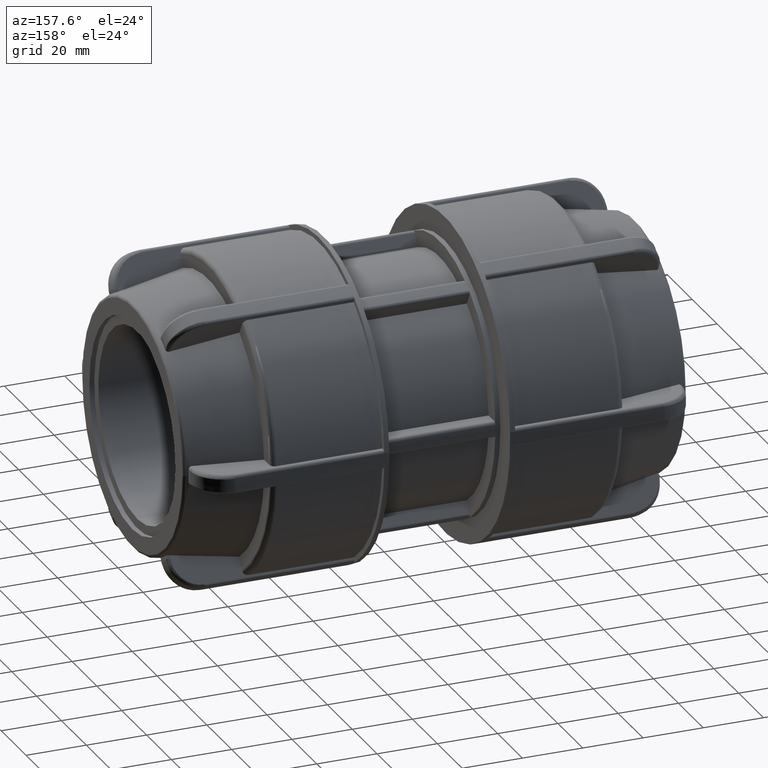
[diagram: clean part render]
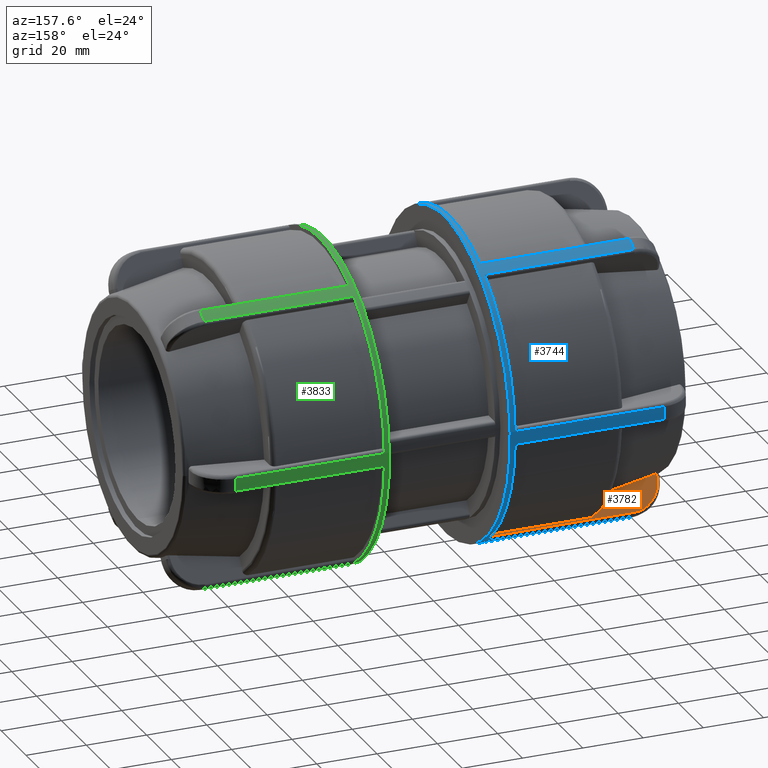
[diagram: same view with three faces highlighted in distinct colors, each labeled with its STEP entity id]
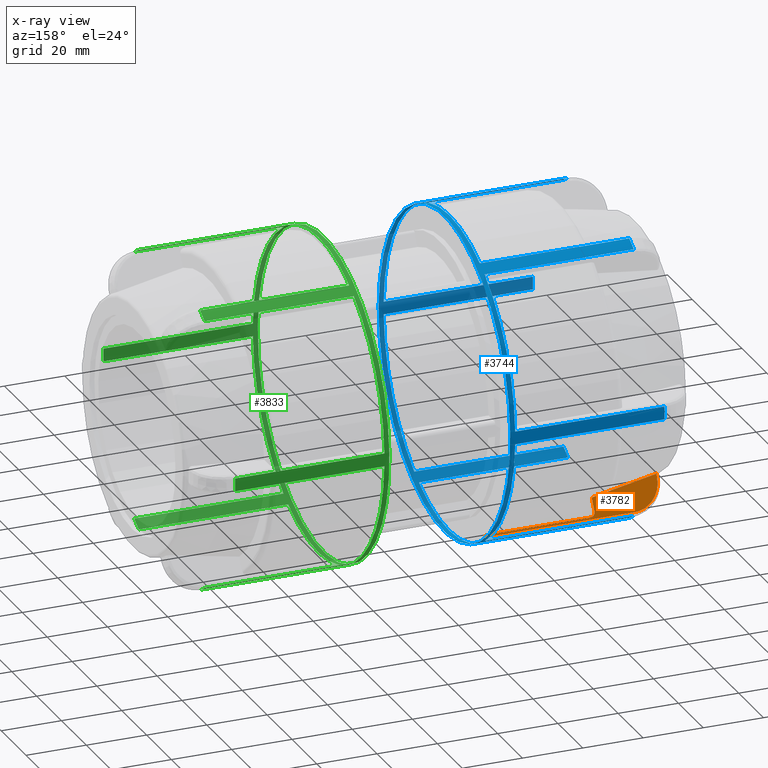
[diagram: x-ray of the same camera — body ghosted, the three highlighted faces saturated]
A machine part, auxiliary view with three faces highlighted in distinct colors.
The next image is the same camera in x-ray (body ghosted, the three faces saturated) — at least one of them is partly hidden behind the body in this view.
Their STEP definitions:

[orange] entity #3782 — the highlighted planar face has unit normal (0, -0.866, -0.5).
#49=(
BOUNDED_CURVE()
B_SPLINE_CURVE(2,(#6592,#6593,#6594),.UNSPECIFIED.,.F.,.F.)
B_SPLINE_CURVE_WITH_KNOTS((3,3),(0.,2.26158406310305),.UNSPECIFIED.)
CURVE()
GEOMETRIC_REPRESENTATION_ITEM()
RATIONAL_B_SPLINE_CURVE((1.,1.00108662893067,1.0001031353825))
REPRESENTATION_ITEM('')
);
#72=B_SPLINE_CURVE_WITH_KNOTS('',3,(#5853,#5854,#5855,#5856,#5857,#5858),
 .UNSPECIFIED.,.F.,.F.,(4,1,1,4),(0.,0.642536437779499,1.07089406296583,
1.49925168815216),.UNSPECIFIED.);
#103=B_SPLINE_CURVE_WITH_KNOTS('',3,(#6598,#6599,#6600,#6601,#6602,#6603,
#6604,#6605,#6606,#6607),.UNSPECIFIED.,.F.,.F.,(4,2,2,2,4),(0.,0.0617922903017213,
0.123644029369259,0.185570297774531,0.247562626783387),.UNSPECIFIED.);
#248=PLANE('',#4112);
#396=FACE_OUTER_BOUND('',#638,.T.);
#638=EDGE_LOOP('',(#2884,#2885,#2886,#2887,#2888,#2889,#2890,#2891));
#858=LINE('',#5810,#1086);
#860=LINE('',#5874,#1088);
#911=LINE('',#6596,#1139);
#912=LINE('',#6609,#1140);
#913=LINE('',#6610,#1141);
#1086=VECTOR('',#4646,49.52);
#1088=VECTOR('',#4654,1.03700516459949);
#1139=VECTOR('',#4865,4.38265552667059);
#1140=VECTOR('',#4866,35.07);
#1141=VECTOR('',#4867,0.584527829037813);
#1574=VERTEX_POINT('',#5807);
#1575=VERTEX_POINT('',#5809);
#1578=VERTEX_POINT('',#5851);
#1580=VERTEX_POINT('',#5861);
#1670=VERTEX_POINT('',#6591);
#1671=VERTEX_POINT('',#6595);
#1672=VERTEX_POINT('',#6597);
#1673=VERTEX_POINT('',#6608);
#1990=EDGE_CURVE('',#1574,#1575,#858,.T.);
#1995=EDGE_CURVE('',#1578,#1574,#72,.T.);
#1997=EDGE_CURVE('',#1580,#1578,#860,.T.);
#2129=EDGE_CURVE('',#1670,#1580,#49,.T.);
#2130=EDGE_CURVE('',#1671,#1670,#911,.T.);
#2131=EDGE_CURVE('',#1672,#1671,#103,.T.);
#2132=EDGE_CURVE('',#1673,#1672,#912,.T.);
#2133=EDGE_CURVE('',#1575,#1673,#913,.T.);
#2884=ORIENTED_EDGE('',*,*,#1997,.F.);
#2885=ORIENTED_EDGE('',*,*,#2129,.F.);
#2886=ORIENTED_EDGE('',*,*,#2130,.F.);
#2887=ORIENTED_EDGE('',*,*,#2131,.F.);
#2888=ORIENTED_EDGE('',*,*,#2132,.F.);
#2889=ORIENTED_EDGE('',*,*,#2133,.F.);
#2890=ORIENTED_EDGE('',*,*,#1990,.F.);
#2891=ORIENTED_EDGE('',*,*,#1995,.F.);
#3782=ADVANCED_FACE('',(#396),#248,.F.);
#4112=AXIS2_PLACEMENT_3D('',#6590,#4863,#4864);
#4646=DIRECTION('',(1.,1.8991348257094E-16,-7.35064880699656E-17));
#4654=DIRECTION('',(-2.32424453838558E-16,0.499999999999999,-0.866025403784439));
#4863=DIRECTION('center_axis',(1.27716656392624E-16,-0.866025403784439,
-0.499999999999999));
#4864=DIRECTION('ref_axis',(3.5527136788005E-16,-0.499999999999999,0.866025403784439));
#4865=DIRECTION('',(1.53080849893419E-16,-0.499999999999999,0.866025403784439));
#4866=DIRECTION('',(-1.,-3.06161699786838E-16,0.));
#4867=DIRECTION('',(1.53080849893419E-16,-0.499999999999999,0.866025403784439));
#5807=CARTESIAN_POINT('',(-71.23,28.676946764356,-43.3699288018126));
#5809=CARTESIAN_POINT('',(-21.71,28.676946764356,-43.3699288018126));
#5810=CARTESIAN_POINT('',(-20.875,28.676946764356,-43.3699288018126));
#5851=CARTESIAN_POINT('',(-80.77,23.9022090515692,-35.0998404904507));
#5853=CARTESIAN_POINT('Ctrl Pts',(-80.77,23.9022090515692,-35.0998404904507));
#5854=CARTESIAN_POINT('Ctrl Pts',(-80.77,24.973103114535,-36.9546834170314));
#5855=CARTESIAN_POINT('Ctrl Pts',(-79.5210555687004,26.7517363296068,-40.0353665135652));
#5856=CARTESIAN_POINT('Ctrl Pts',(-75.5087156799186,28.3499451026977,-42.8035453096611));
#5857=CARTESIAN_POINT('Ctrl Pts',(-72.657858750621,28.676946764356,-43.3699288018126));
#5858=CARTESIAN_POINT('Ctrl Pts',(-71.23,28.676946764356,-43.3699288018126));
#5861=CARTESIAN_POINT('',(-80.77,23.3837064692695,-34.2017676740519));
#5874=CARTESIAN_POINT('',(-80.77,25.4274662428712,-37.7416634403955));
#6590=CARTESIAN_POINT('Origin',(-20.04,29.1811343706938,-44.2432073525362));
#6591=CARTESIAN_POINT('',(-58.45,25.3567303205096,-37.619145228945));
#6592=CARTESIAN_POINT('Ctrl Pts',(-58.45,25.3567303205096,-37.619145228945));
#6593=CARTESIAN_POINT('Ctrl Pts',(-70.1187027137413,24.3254879251973,-35.832981005345));
#6594=CARTESIAN_POINT('Ctrl Pts',(-80.7700000000002,23.3837064692694,-34.2017676740518));
#6595=CARTESIAN_POINT('',(-58.45,27.5480580838449,-41.414636251078));
#6596=CARTESIAN_POINT('',(-58.45,21.6254310546507,-31.156345322233));
#6597=CARTESIAN_POINT('',(-56.78,28.3846828498371,-42.8637128526469));
#6598=CARTESIAN_POINT('Ctrl Pts',(-56.78,28.3846828498371,-42.8637128526469));
#6599=CARTESIAN_POINT('Ctrl Pts',(-56.9859743010058,28.3846828498371,-42.8637128526469));
#6600=CARTESIAN_POINT('Ctrl Pts',(-57.2283814630195,28.3605407597445,-42.8218975260057));
#6601=CARTESIAN_POINT('Ctrl Pts',(-57.6090944466039,28.2816063254478,-42.6851790753371));
#6602=CARTESIAN_POINT('Ctrl Pts',(-57.8147156802085,28.2128129567597,-42.5660254655455));
#6603=CARTESIAN_POINT('Ctrl Pts',(-58.1062949093139,28.0668550583607,-42.3132189697523));
#6604=CARTESIAN_POINT('Ctrl Pts',(-58.2437741301792,27.9638292517296,-42.1347730381766));
#6605=CARTESIAN_POINT('Ctrl Pts',(-58.4016935444585,27.772987912316,-41.8042261421277));
#6606=CARTESIAN_POINT('Ctrl Pts',(-58.45,27.651378632193,-41.5935926902828));
#6607=CARTESIAN_POINT('Ctrl Pts',(-58.45,27.5480580838449,-41.414636251078));
#6608=CARTESIAN_POINT('',(-21.71,28.3846828498371,-42.8637128526469));
#6609=CARTESIAN_POINT('',(-40.08,28.3846828498371,-42.8637128526469));
#6610=CARTESIAN_POINT('',(-21.71,22.3808071963073,-32.4646951784076));

[blue] entity #3744 — the highlighted cylindrical surface (bore or boss wall) has radius 53 mm, axis along (1, 0, 0).
#198=FACE_BOUND('',#600,.T.);
#358=FACE_OUTER_BOUND('',#599,.T.);
#599=EDGE_LOOP('',(#2691,#2692,#2693,#2694,#2695,#2696,#2697,#2698,#2699,
#2700,#2701,#2702,#2703,#2704,#2705,#2706,#2707,#2708,#2709,#2710,#2711,
#2712,#2713,#2714));
#600=EDGE_LOOP('',(#2715));
#851=LINE('',#5718,#1079);
#859=LINE('',#5813,#1087);
#862=LINE('',#5885,#1090);
#863=LINE('',#5889,#1091);
#864=LINE('',#5893,#1092);
#865=LINE('',#5897,#1093);
#866=LINE('',#5901,#1094);
#867=LINE('',#5905,#1095);
#868=LINE('',#5909,#1096);
#869=LINE('',#5913,#1097);
#870=LINE('',#5917,#1098);
#871=LINE('',#5921,#1099);
#1079=VECTOR('',#4627,49.52);
#1087=VECTOR('',#4649,49.52);
#1090=VECTOR('',#4670,49.52);
#1091=VECTOR('',#4673,49.52);
#1092=VECTOR('',#4676,49.52);
#1093=VECTOR('',#4679,49.52);
#1094=VECTOR('',#4682,49.52);
#1095=VECTOR('',#4685,49.52);
#1096=VECTOR('',#4688,49.52);
#1097=VECTOR('',#4691,49.52);
#1098=VECTOR('',#4694,49.52);
#1099=VECTOR('',#4697,49.52);
#1310=CIRCLE('',#4037,53.);
#1311=CIRCLE('',#4039,53.);
#1312=CIRCLE('',#4040,53.);
#1313=CIRCLE('',#4041,53.);
#1314=CIRCLE('',#4042,53.);
#1315=CIRCLE('',#4043,53.);
#1316=CIRCLE('',#4044,53.);
#1317=CIRCLE('',#4045,53.);
#1318=CIRCLE('',#4046,53.);
#1319=CIRCLE('',#4047,53.);
#1320=CIRCLE('',#4048,53.);
#1321=CIRCLE('',#4049,53.);
#1322=CIRCLE('',#4050,53.);
#1562=VERTEX_POINT('',#5715);
#1563=VERTEX_POINT('',#5717);
#1573=VERTEX_POINT('',#5806);
#1576=VERTEX_POINT('',#5811);
#1581=VERTEX_POINT('',#5882);
#1582=VERTEX_POINT('',#5884);
#1583=VERTEX_POINT('',#5886);
#1584=VERTEX_POINT('',#5888);
#1585=VERTEX_POINT('',#5890);
#1586=VERTEX_POINT('',#5892);
#1587=VERTEX_POINT('',#5894);
#1588=VERTEX_POINT('',#5896);
#1589=VERTEX_POINT('',#5898);
#1590=VERTEX_POINT('',#5900);
#1591=VERTEX_POINT('',#5902);
#1592=VERTEX_POINT('',#5904);
#1593=VERTEX_POINT('',#5906);
#1594=VERTEX_POINT('',#5908);
#1595=VERTEX_POINT('',#5910);
#1596=VERTEX_POINT('',#5912);
#1597=VERTEX_POINT('',#5914);
#1598=VERTEX_POINT('',#5916);
#1599=VERTEX_POINT('',#5918);
#1600=VERTEX_POINT('',#5920);
#1601=VERTEX_POINT('',#5923);
#1975=EDGE_CURVE('',#1562,#1563,#851,.T.);
#1992=EDGE_CURVE('',#1576,#1573,#859,.T.);
#2001=EDGE_CURVE('',#1573,#1562,#1310,.T.);
#2002=EDGE_CURVE('',#1581,#1576,#1311,.T.);
#2003=EDGE_CURVE('',#1582,#1581,#862,.T.);
#2004=EDGE_CURVE('',#1583,#1582,#1312,.T.);
#2005=EDGE_CURVE('',#1584,#1583,#863,.T.);
#2006=EDGE_CURVE('',#1585,#1584,#1313,.T.);
#2007=EDGE_CURVE('',#1586,#1585,#864,.T.);
#2008=EDGE_CURVE('',#1587,#1586,#1314,.T.);
#2009=EDGE_CURVE('',#1588,#1587,#865,.T.);
#2010=EDGE_CURVE('',#1589,#1588,#1315,.T.);
#2011=EDGE_CURVE('',#1590,#1589,#866,.T.);
#2012=EDGE_CURVE('',#1591,#1590,#1316,.T.);
#2013=EDGE_CURVE('',#1592,#1591,#867,.T.);
#2014=EDGE_CURVE('',#1593,#1592,#1317,.T.);
#2015=EDGE_CURVE('',#1594,#1593,#868,.T.);
#2016=EDGE_CURVE('',#1595,#1594,#1318,.T.);
#2017=EDGE_CURVE('',#1596,#1595,#869,.T.);
#2018=EDGE_CURVE('',#1597,#1596,#1319,.T.);
#2019=EDGE_CURVE('',#1598,#1597,#870,.T.);
#2020=EDGE_CURVE('',#1599,#1598,#1320,.T.);
#2021=EDGE_CURVE('',#1600,#1599,#871,.T.);
#2022=EDGE_CURVE('',#1563,#1600,#1321,.T.);
#2023=EDGE_CURVE('',#1601,#1601,#1322,.T.);
#2691=ORIENTED_EDGE('',*,*,#1975,.F.);
#2692=ORIENTED_EDGE('',*,*,#2001,.F.);
#2693=ORIENTED_EDGE('',*,*,#1992,.F.);
#2694=ORIENTED_EDGE('',*,*,#2002,.F.);
#2695=ORIENTED_EDGE('',*,*,#2003,.F.);
#2696=ORIENTED_EDGE('',*,*,#2004,.F.);
#2697=ORIENTED_EDGE('',*,*,#2005,.F.);
#2698=ORIENTED_EDGE('',*,*,#2006,.F.);
#2699=ORIENTED_EDGE('',*,*,#2007,.F.);
#2700=ORIENTED_EDGE('',*,*,#2008,.F.);
#2701=ORIENTED_EDGE('',*,*,#2009,.F.);
#2702=ORIENTED_EDGE('',*,*,#2010,.F.);
#2703=ORIENTED_EDGE('',*,*,#2011,.F.);
#2704=ORIENTED_EDGE('',*,*,#2012,.F.);
#2705=ORIENTED_EDGE('',*,*,#2013,.F.);
#2706=ORIENTED_EDGE('',*,*,#2014,.F.);
#2707=ORIENTED_EDGE('',*,*,#2015,.F.);
#2708=ORIENTED_EDGE('',*,*,#2016,.F.);
#2709=ORIENTED_EDGE('',*,*,#2017,.F.);
#2710=ORIENTED_EDGE('',*,*,#2018,.F.);
#2711=ORIENTED_EDGE('',*,*,#2019,.F.);
#2712=ORIENTED_EDGE('',*,*,#2020,.F.);
#2713=ORIENTED_EDGE('',*,*,#2021,.F.);
#2714=ORIENTED_EDGE('',*,*,#2022,.F.);
#2715=ORIENTED_EDGE('',*,*,#2023,.F.);
#3629=CYLINDRICAL_SURFACE('',#4038,53.);
#3744=ADVANCED_FACE('',(#358,#198),#3629,.T.);
#4037=AXIS2_PLACEMENT_3D('',#5880,#4664,#4665);
#4038=AXIS2_PLACEMENT_3D('',#5881,#4666,#4667);
#4039=AXIS2_PLACEMENT_3D('',#5883,#4668,#4669);
#4040=AXIS2_PLACEMENT_3D('',#5887,#4671,#4672);
#4041=AXIS2_PLACEMENT_3D('',#5891,#4674,#4675);
#4042=AXIS2_PLACEMENT_3D('',#5895,#4677,#4678);
#4043=AXIS2_PLACEMENT_3D('',#5899,#4680,#4681);
#4044=AXIS2_PLACEMENT_3D('',#5903,#4683,#4684);
#4045=AXIS2_PLACEMENT_3D('',#5907,#4686,#4687);
#4046=AXIS2_PLACEMENT_3D('',#5911,#4689,#4690);
#4047=AXIS2_PLACEMENT_3D('',#5915,#4692,#4693);
#4048=AXIS2_PLACEMENT_3D('',#5919,#4695,#4696);
#4049=AXIS2_PLACEMENT_3D('',#5922,#4698,#4699);
#4050=AXIS2_PLACEMENT_3D('',#5924,#4700,#4701);
#4627=DIRECTION('',(1.,3.06161699786838E-16,0.));
#4649=DIRECTION('',(-1.,-3.06161699786838E-16,0.));
#4664=DIRECTION('center_axis',(-1.,-2.268180958417E-16,1.37427153288602E-16));
#4665=DIRECTION('ref_axis',(-2.51371250858526E-16,0.499999999999999,-0.866025403784439));
#4666=DIRECTION('center_axis',(1.,3.06161699786838E-16,0.));
#4667=DIRECTION('ref_axis',(-1.47474491896561E-16,1.,0.));
#4668=DIRECTION('center_axis',(-1.,-3.06161699786838E-16,0.));
#4669=DIRECTION('ref_axis',(-1.47474491896561E-16,1.,0.));
#4670=DIRECTION('',(1.,3.06161699786838E-16,0.));
#4671=DIRECTION('center_axis',(-1.,-3.06161699786838E-16,0.));
#4672=DIRECTION('ref_axis',(-2.93266459334947E-16,1.,-1.60812264967664E-16));
#4673=DIRECTION('',(-1.,-3.06161699786838E-16,0.));
#4674=DIRECTION('center_axis',(-1.,-3.06161699786838E-16,0.));
#4675=DIRECTION('ref_axis',(-1.47474491896561E-16,1.,0.));
#4676=DIRECTION('',(1.,3.06161699786838E-16,0.));
#4677=DIRECTION('center_axis',(-1.,-2.268180958417E-16,-1.37427153288602E-16));
#4678=DIRECTION('ref_axis',(-2.51371250858526E-16,0.5,0.866025403784438));
#4679=DIRECTION('',(-1.,-3.06161699786838E-16,0.));
#4680=DIRECTION('center_axis',(-1.,-3.06161699786838E-16,0.));
#4681=DIRECTION('ref_axis',(-1.47474491896561E-16,1.,0.));
#4682=DIRECTION('',(1.,3.06161699786838E-16,0.));
#4683=DIRECTION('center_axis',(-1.,-6.81308879514227E-17,-1.37427153288602E-16));
#4684=DIRECTION('ref_axis',(-8.3790416952842E-17,-0.5,0.866025403784439));
#4685=DIRECTION('',(-1.,-3.06161699786838E-16,0.));
#4686=DIRECTION('center_axis',(-1.,-3.06161699786838E-16,0.));
#4687=DIRECTION('ref_axis',(-1.47474491896561E-16,1.,0.));
#4688=DIRECTION('',(1.,3.06161699786838E-16,0.));
#4689=DIRECTION('center_axis',(-1.,1.12127159937158E-17,-3.69778549322349E-32));
#4690=DIRECTION('ref_axis',(0.,-1.,2.44602681920506E-16));
#4691=DIRECTION('',(-1.,-3.06161699786838E-16,0.));
#4692=DIRECTION('center_axis',(-1.,-3.06161699786838E-16,0.));
#4693=DIRECTION('ref_axis',(-1.47474491896561E-16,1.,0.));
#4694=DIRECTION('',(1.,3.06161699786838E-16,0.));
#4695=DIRECTION('center_axis',(-1.,-6.81308879514227E-17,1.37427153288602E-16));
#4696=DIRECTION('ref_axis',(-8.3790416952842E-17,-0.500000000000001,-0.866025403784438));
#4697=DIRECTION('',(-1.,-3.06161699786838E-16,0.));
#4698=DIRECTION('center_axis',(-1.,-3.06161699786838E-16,0.));
#4699=DIRECTION('ref_axis',(-1.47474491896561E-16,1.,0.));
#4700=DIRECTION('center_axis',(1.,3.06161699786838E-16,0.));
#4701=DIRECTION('ref_axis',(0.,0.,-1.));
#5715=CARTESIAN_POINT('',(-71.23,24.6316057638015,-46.9284987773598));
#5717=CARTESIAN_POINT('',(-21.71,24.6316057638015,-46.9284987773598));
#5718=CARTESIAN_POINT('',(-20.875,24.6316057638015,-46.9284987773598));
#5806=CARTESIAN_POINT('',(-71.23,28.3254692207596,-44.7958457161353));
#5811=CARTESIAN_POINT('',(-21.71,28.3254692207597,-44.7958457161353));
#5813=CARTESIAN_POINT('',(-20.875,28.3254692207597,-44.7958457161353));
#5880=CARTESIAN_POINT('Origin',(-71.23,-2.18078978758165E-14,0.));
#5881=CARTESIAN_POINT('Origin',(-20.875,-6.39112548305025E-15,0.));
#5882=CARTESIAN_POINT('',(-21.71,52.9570749845613,-2.1326530612245));
#5883=CARTESIAN_POINT('Origin',(-21.71,-6.64677050237226E-15,0.));
#5884=CARTESIAN_POINT('',(-71.23,52.9570749845613,-2.1326530612245));
#5885=CARTESIAN_POINT('',(-20.875,52.9570749845613,-2.1326530612245));
#5886=CARTESIAN_POINT('',(-71.23,52.9570749845613,2.13265306122448));
#5887=CARTESIAN_POINT('Origin',(-71.23,-2.18078978758165E-14,0.));
#5888=CARTESIAN_POINT('',(-21.71,52.9570749845613,2.13265306122448));
#5889=CARTESIAN_POINT('',(-20.875,52.9570749845613,2.13265306122448));
#5890=CARTESIAN_POINT('',(-21.71,28.3254692207597,44.7958457161353));
#5891=CARTESIAN_POINT('Origin',(-21.71,-6.64677050237226E-15,0.));
#5892=CARTESIAN_POINT('',(-71.23,28.3254692207597,44.7958457161353));
#5893=CARTESIAN_POINT('',(-20.875,28.3254692207597,44.7958457161353));
#5894=CARTESIAN_POINT('',(-71.23,24.6316057638016,46.9284987773597));
#5895=CARTESIAN_POINT('Origin',(-71.23,-2.18078978758165E-14,0.));
#5896=CARTESIAN_POINT('',(-21.71,24.6316057638016,46.9284987773597));
#5897=CARTESIAN_POINT('',(-20.875,24.6316057638016,46.9284987773597));
#5898=CARTESIAN_POINT('',(-21.71,-24.6316057638016,46.9284987773597));
#5899=CARTESIAN_POINT('Origin',(-21.71,-6.64677050237226E-15,0.));
#5900=CARTESIAN_POINT('',(-71.23,-24.6316057638016,46.9284987773597));
#5901=CARTESIAN_POINT('',(-20.875,-24.6316057638016,46.9284987773597));
#5902=CARTESIAN_POINT('',(-71.23,-28.3254692207597,44.7958457161353));
#5903=CARTESIAN_POINT('Origin',(-71.23,-2.18078978758165E-14,0.));
#5904=CARTESIAN_POINT('',(-21.71,-28.3254692207597,44.7958457161353));
#5905=CARTESIAN_POINT('',(-20.875,-28.3254692207597,44.7958457161353));
#5906=CARTESIAN_POINT('',(-21.71,-52.9570749845613,2.1326530612245));
#5907=CARTESIAN_POINT('Origin',(-21.71,-6.64677050237226E-15,0.));
#5908=CARTESIAN_POINT('',(-71.23,-52.9570749845613,2.1326530612245));
#5909=CARTESIAN_POINT('',(-20.875,-52.9570749845613,2.1326530612245));
#5910=CARTESIAN_POINT('',(-71.23,-52.9570749845613,-2.13265306122447));
#5911=CARTESIAN_POINT('Origin',(-71.23,-2.18078978758165E-14,0.));
#5912=CARTESIAN_POINT('',(-21.71,-52.9570749845613,-2.13265306122447));
#5913=CARTESIAN_POINT('',(-20.875,-52.9570749845613,-2.13265306122447));
#5914=CARTESIAN_POINT('',(-21.71,-28.3254692207598,-44.7958457161352));
#5915=CARTESIAN_POINT('Origin',(-21.71,-6.64677050237226E-15,0.));
#5916=CARTESIAN_POINT('',(-71.23,-28.3254692207598,-44.7958457161352));
#5917=CARTESIAN_POINT('',(-20.875,-28.3254692207598,-44.7958457161352));
#5918=CARTESIAN_POINT('',(-71.23,-24.6316057638016,-46.9284987773597));
#5919=CARTESIAN_POINT('Origin',(-71.23,-2.18078978758165E-14,0.));
#5920=CARTESIAN_POINT('',(-21.71,-24.6316057638016,-46.9284987773597));
#5921=CARTESIAN_POINT('',(-20.875,-24.6316057638016,-46.9284987773597));
#5922=CARTESIAN_POINT('Origin',(-21.71,-6.64677050237226E-15,0.));
#5923=CARTESIAN_POINT('',(-20.04,29.1811343706938,-44.2432073525362));
#5924=CARTESIAN_POINT('Origin',(-20.04,-6.13548046372825E-15,0.));

[green] entity #3833 — the highlighted cylindrical surface (bore or boss wall) has radius 53 mm, axis along (1, 0, 0).
#206=FACE_BOUND('',#697,.T.);
#447=FACE_OUTER_BOUND('',#696,.T.);
#696=EDGE_LOOP('',(#3147));
#697=EDGE_LOOP('',(#3148,#3149,#3150,#3151,#3152,#3153,#3154,#3155,#3156,
#3157,#3158,#3159,#3160,#3161,#3162,#3163,#3164,#3165,#3166,#3167,#3168,
#3169,#3170,#3171));
#936=LINE('',#6929,#1164);
#940=LINE('',#7014,#1168);
#941=LINE('',#7018,#1169);
#942=LINE('',#7022,#1170);
#943=LINE('',#7026,#1171);
#944=LINE('',#7030,#1172);
#945=LINE('',#7034,#1173);
#946=LINE('',#7038,#1174);
#947=LINE('',#7042,#1175);
#948=LINE('',#7046,#1176);
#949=LINE('',#7050,#1177);
#950=LINE('',#7053,#1178);
#1164=VECTOR('',#5056,49.52);
#1168=VECTOR('',#5080,49.52);
#1169=VECTOR('',#5083,49.52);
#1170=VECTOR('',#5086,49.52);
#1171=VECTOR('',#5089,49.52);
#1172=VECTOR('',#5092,49.52);
#1173=VECTOR('',#5095,49.52);
#1174=VECTOR('',#5098,49.52);
#1175=VECTOR('',#5101,49.52);
#1176=VECTOR('',#5104,49.52);
#1177=VECTOR('',#5107,49.52);
#1178=VECTOR('',#5110,49.52);
#1397=CIRCLE('',#4202,53.);
#1398=CIRCLE('',#4204,53.);
#1399=CIRCLE('',#4205,53.);
#1400=CIRCLE('',#4206,53.);
#1401=CIRCLE('',#4207,53.);
#1402=CIRCLE('',#4208,53.);
#1403=CIRCLE('',#4209,53.);
#1404=CIRCLE('',#4210,53.);
#1405=CIRCLE('',#4211,53.);
#1406=CIRCLE('',#4212,53.);
#1407=CIRCLE('',#4213,53.);
#1408=CIRCLE('',#4214,53.);
#1409=CIRCLE('',#4215,53.);
#1710=VERTEX_POINT('',#6922);
#1713=VERTEX_POINT('',#6927);
#1720=VERTEX_POINT('',#7000);
#1721=VERTEX_POINT('',#7009);
#1722=VERTEX_POINT('',#7011);
#1723=VERTEX_POINT('',#7013);
#1724=VERTEX_POINT('',#7015);
#1725=VERTEX_POINT('',#7017);
#1726=VERTEX_POINT('',#7019);
#1727=VERTEX_POINT('',#7021);
#1728=VERTEX_POINT('',#7023);
#1729=VERTEX_POINT('',#7025);
#1730=VERTEX_POINT('',#7027);
#1731=VERTEX_POINT('',#7029);
#1732=VERTEX_POINT('',#7031);
#1733=VERTEX_POINT('',#7033);
#1734=VERTEX_POINT('',#7035);
#1735=VERTEX_POINT('',#7037);
#1736=VERTEX_POINT('',#7039);
#1737=VERTEX_POINT('',#7041);
#1738=VERTEX_POINT('',#7043);
#1739=VERTEX_POINT('',#7045);
#1740=VERTEX_POINT('',#7047);
#1741=VERTEX_POINT('',#7049);
#1742=VERTEX_POINT('',#7051);
#2211=EDGE_CURVE('',#1713,#1710,#936,.T.);
#2221=EDGE_CURVE('',#1710,#1720,#1397,.T.);
#2223=EDGE_CURVE('',#1721,#1721,#1398,.T.);
#2224=EDGE_CURVE('',#1722,#1713,#1399,.T.);
#2225=EDGE_CURVE('',#1723,#1722,#940,.T.);
#2226=EDGE_CURVE('',#1724,#1723,#1400,.T.);
#2227=EDGE_CURVE('',#1725,#1724,#941,.T.);
#2228=EDGE_CURVE('',#1726,#1725,#1401,.T.);
#2229=EDGE_CURVE('',#1727,#1726,#942,.T.);
#2230=EDGE_CURVE('',#1728,#1727,#1402,.T.);
#2231=EDGE_CURVE('',#1729,#1728,#943,.T.);
#2232=EDGE_CURVE('',#1730,#1729,#1403,.T.);
#2233=EDGE_CURVE('',#1731,#1730,#944,.T.);
#2234=EDGE_CURVE('',#1732,#1731,#1404,.T.);
#2235=EDGE_CURVE('',#1733,#1732,#945,.T.);
#2236=EDGE_CURVE('',#1734,#1733,#1405,.T.);
#2237=EDGE_CURVE('',#1735,#1734,#946,.T.);
#2238=EDGE_CURVE('',#1736,#1735,#1406,.T.);
#2239=EDGE_CURVE('',#1737,#1736,#947,.T.);
#2240=EDGE_CURVE('',#1738,#1737,#1407,.T.);
#2241=EDGE_CURVE('',#1739,#1738,#948,.T.);
#2242=EDGE_CURVE('',#1740,#1739,#1408,.T.);
#2243=EDGE_CURVE('',#1741,#1740,#949,.T.);
#2244=EDGE_CURVE('',#1742,#1741,#1409,.T.);
#2245=EDGE_CURVE('',#1720,#1742,#950,.T.);
#3147=ORIENTED_EDGE('',*,*,#2223,.T.);
#3148=ORIENTED_EDGE('',*,*,#2211,.F.);
#3149=ORIENTED_EDGE('',*,*,#2224,.F.);
#3150=ORIENTED_EDGE('',*,*,#2225,.F.);
#3151=ORIENTED_EDGE('',*,*,#2226,.F.);
#3152=ORIENTED_EDGE('',*,*,#2227,.F.);
#3153=ORIENTED_EDGE('',*,*,#2228,.F.);
#3154=ORIENTED_EDGE('',*,*,#2229,.F.);
#3155=ORIENTED_EDGE('',*,*,#2230,.F.);
#3156=ORIENTED_EDGE('',*,*,#2231,.F.);
#3157=ORIENTED_EDGE('',*,*,#2232,.F.);
#3158=ORIENTED_EDGE('',*,*,#2233,.F.);
#3159=ORIENTED_EDGE('',*,*,#2234,.F.);
#3160=ORIENTED_EDGE('',*,*,#2235,.F.);
#3161=ORIENTED_EDGE('',*,*,#2236,.F.);
#3162=ORIENTED_EDGE('',*,*,#2237,.F.);
#3163=ORIENTED_EDGE('',*,*,#2238,.F.);
#3164=ORIENTED_EDGE('',*,*,#2239,.F.);
#3165=ORIENTED_EDGE('',*,*,#2240,.F.);
#3166=ORIENTED_EDGE('',*,*,#2241,.F.);
#3167=ORIENTED_EDGE('',*,*,#2242,.F.);
#3168=ORIENTED_EDGE('',*,*,#2243,.F.);
#3169=ORIENTED_EDGE('',*,*,#2244,.F.);
#3170=ORIENTED_EDGE('',*,*,#2245,.F.);
#3171=ORIENTED_EDGE('',*,*,#2221,.F.);
#3660=CYLINDRICAL_SURFACE('',#4203,53.);
#3833=ADVANCED_FACE('',(#447,#206),#3660,.T.);
#4202=AXIS2_PLACEMENT_3D('',#7001,#5072,#5073);
#4203=AXIS2_PLACEMENT_3D('',#7008,#5074,#5075);
#4204=AXIS2_PLACEMENT_3D('',#7010,#5076,#5077);
#4205=AXIS2_PLACEMENT_3D('',#7012,#5078,#5079);
#4206=AXIS2_PLACEMENT_3D('',#7016,#5081,#5082);
#4207=AXIS2_PLACEMENT_3D('',#7020,#5084,#5085);
#4208=AXIS2_PLACEMENT_3D('',#7024,#5087,#5088);
#4209=AXIS2_PLACEMENT_3D('',#7028,#5090,#5091);
#4210=AXIS2_PLACEMENT_3D('',#7032,#5093,#5094);
#4211=AXIS2_PLACEMENT_3D('',#7036,#5096,#5097);
#4212=AXIS2_PLACEMENT_3D('',#7040,#5099,#5100);
#4213=AXIS2_PLACEMENT_3D('',#7044,#5102,#5103);
#4214=AXIS2_PLACEMENT_3D('',#7048,#5105,#5106);
#4215=AXIS2_PLACEMENT_3D('',#7052,#5108,#5109);
#5056=DIRECTION('',(1.,3.06161699786838E-16,0.));
#5072=DIRECTION('center_axis',(1.,3.85505303731977E-16,1.37427153288602E-16));
#5073=DIRECTION('ref_axis',(-8.3790416952842E-17,0.499999999999999,-0.866025403784439));
#5074=DIRECTION('center_axis',(1.,3.06161699786838E-16,0.));
#5075=DIRECTION('ref_axis',(-4.64848907677115E-16,1.,0.));
#5076=DIRECTION('center_axis',(1.,3.06161699786838E-16,0.));
#5077=DIRECTION('ref_axis',(0.,0.,-1.));
#5078=DIRECTION('center_axis',(1.,3.06161699786838E-16,0.));
#5079=DIRECTION('ref_axis',(0.,0.,-1.));
#5080=DIRECTION('',(-1.,-3.06161699786838E-16,0.));
#5081=DIRECTION('center_axis',(1.,5.44192511622254E-16,1.37427153288602E-16));
#5082=DIRECTION('ref_axis',(3.77056876287789E-16,-0.500000000000001,-0.866025403784438));
#5083=DIRECTION('',(1.,3.06161699786838E-16,0.));
#5084=DIRECTION('center_axis',(1.,3.06161699786838E-16,0.));
#5085=DIRECTION('ref_axis',(0.,0.,-1.));
#5086=DIRECTION('',(-1.,-3.06161699786838E-16,0.));
#5087=DIRECTION('center_axis',(1.,6.23536115567392E-16,-3.69778549322349E-32));
#5088=DIRECTION('ref_axis',(6.28428127146315E-16,-1.,2.44602681920506E-16));
#5089=DIRECTION('',(1.,3.06161699786838E-16,0.));
#5090=DIRECTION('center_axis',(1.,3.06161699786838E-16,0.));
#5091=DIRECTION('ref_axis',(0.,0.,-1.));
#5092=DIRECTION('',(-1.,-3.06161699786838E-16,0.));
#5093=DIRECTION('center_axis',(1.,5.44192511622254E-16,-1.37427153288602E-16));
#5094=DIRECTION('ref_axis',(3.77056876287789E-16,-0.5,0.866025403784439));
#5095=DIRECTION('',(1.,3.06161699786838E-16,0.));
#5096=DIRECTION('center_axis',(1.,3.06161699786838E-16,0.));
#5097=DIRECTION('ref_axis',(0.,0.,-1.));
#5098=DIRECTION('',(-1.,-3.06161699786838E-16,0.));
#5099=DIRECTION('center_axis',(1.,3.85505303731977E-16,-1.37427153288602E-16));
#5100=DIRECTION('ref_axis',(-8.3790416952842E-17,0.5,0.866025403784438));
#5101=DIRECTION('',(1.,3.06161699786838E-16,0.));
#5102=DIRECTION('center_axis',(1.,3.06161699786838E-16,0.));
#5103=DIRECTION('ref_axis',(0.,0.,-1.));
#5104=DIRECTION('',(-1.,-3.06161699786838E-16,0.));
#5105=DIRECTION('center_axis',(1.,3.06161699786838E-16,0.));
#5106=DIRECTION('ref_axis',(-2.93266459334947E-16,1.,-1.60812264967664E-16));
#5107=DIRECTION('',(1.,3.06161699786838E-16,0.));
#5108=DIRECTION('center_axis',(1.,3.06161699786838E-16,0.));
#5109=DIRECTION('ref_axis',(0.,0.,-1.));
#5110=DIRECTION('',(-1.,-3.06161699786838E-16,0.));
#6922=CARTESIAN_POINT('',(71.23,24.6316057638016,-46.9284987773598));
#6927=CARTESIAN_POINT('',(21.71,24.6316057638016,-46.9284987773598));
#6929=CARTESIAN_POINT('',(20.875,24.6316057638016,-46.9284987773598));
#7000=CARTESIAN_POINT('',(71.23,28.3254692207597,-44.7958457161353));
#7001=CARTESIAN_POINT('Origin',(71.23,2.18078978758165E-14,0.));
#7008=CARTESIAN_POINT('Origin',(20.875,6.39112548305025E-15,0.));
#7009=CARTESIAN_POINT('',(20.04,29.1811343706938,-44.2432073525362));
#7010=CARTESIAN_POINT('Origin',(20.04,6.13548046372824E-15,0.));
#7011=CARTESIAN_POINT('',(21.71,-24.6316057638016,-46.9284987773597));
#7012=CARTESIAN_POINT('Origin',(21.71,6.64677050237226E-15,0.));
#7013=CARTESIAN_POINT('',(71.23,-24.6316057638016,-46.9284987773597));
#7014=CARTESIAN_POINT('',(20.875,-24.6316057638016,-46.9284987773597));
#7015=CARTESIAN_POINT('',(71.23,-28.3254692207597,-44.7958457161352));
#7016=CARTESIAN_POINT('Origin',(71.23,2.18078978758165E-14,0.));
#7017=CARTESIAN_POINT('',(21.71,-28.3254692207597,-44.7958457161352));
#7018=CARTESIAN_POINT('',(20.875,-28.3254692207597,-44.7958457161352));
#7019=CARTESIAN_POINT('',(21.71,-52.9570749845613,-2.13265306122447));
#7020=CARTESIAN_POINT('Origin',(21.71,6.64677050237226E-15,0.));
#7021=CARTESIAN_POINT('',(71.2300000000001,-52.9570749845613,-2.13265306122447));
#7022=CARTESIAN_POINT('',(20.875,-52.9570749845613,-2.13265306122447));
#7023=CARTESIAN_POINT('',(71.2300000000001,-52.9570749845613,2.1326530612245));
#7024=CARTESIAN_POINT('Origin',(71.23,2.18078978758165E-14,0.));
#7025=CARTESIAN_POINT('',(21.71,-52.9570749845613,2.1326530612245));
#7026=CARTESIAN_POINT('',(20.875,-52.9570749845613,2.1326530612245));
#7027=CARTESIAN_POINT('',(21.71,-28.3254692207597,44.7958457161353));
#7028=CARTESIAN_POINT('Origin',(21.71,6.64677050237226E-15,0.));
#7029=CARTESIAN_POINT('',(71.23,-28.3254692207597,44.7958457161353));
#7030=CARTESIAN_POINT('',(20.875,-28.3254692207597,44.7958457161353));
#7031=CARTESIAN_POINT('',(71.23,-24.6316057638016,46.9284987773597));
#7032=CARTESIAN_POINT('Origin',(71.23,2.18078978758165E-14,0.));
#7033=CARTESIAN_POINT('',(21.71,-24.6316057638016,46.9284987773597));
#7034=CARTESIAN_POINT('',(20.875,-24.6316057638016,46.9284987773597));
#7035=CARTESIAN_POINT('',(21.71,24.6316057638016,46.9284987773597));
#7036=CARTESIAN_POINT('Origin',(21.71,6.64677050237226E-15,0.));
#7037=CARTESIAN_POINT('',(71.23,24.6316057638016,46.9284987773597));
#7038=CARTESIAN_POINT('',(20.875,24.6316057638016,46.9284987773597));
#7039=CARTESIAN_POINT('',(71.23,28.3254692207597,44.7958457161353));
#7040=CARTESIAN_POINT('Origin',(71.23,2.18078978758165E-14,0.));
#7041=CARTESIAN_POINT('',(21.71,28.3254692207597,44.7958457161353));
#7042=CARTESIAN_POINT('',(20.875,28.3254692207597,44.7958457161353));
#7043=CARTESIAN_POINT('',(21.71,52.9570749845613,2.13265306122448));
#7044=CARTESIAN_POINT('Origin',(21.71,6.64677050237226E-15,0.));
#7045=CARTESIAN_POINT('',(71.23,52.9570749845613,2.13265306122448));
#7046=CARTESIAN_POINT('',(20.875,52.9570749845613,2.13265306122448));
#7047=CARTESIAN_POINT('',(71.23,52.9570749845613,-2.1326530612245));
#7048=CARTESIAN_POINT('Origin',(71.23,2.18078978758165E-14,0.));
#7049=CARTESIAN_POINT('',(21.71,52.9570749845613,-2.1326530612245));
#7050=CARTESIAN_POINT('',(20.875,52.9570749845613,-2.1326530612245));
#7051=CARTESIAN_POINT('',(21.71,28.3254692207597,-44.7958457161353));
#7052=CARTESIAN_POINT('Origin',(21.71,6.64677050237226E-15,0.));
#7053=CARTESIAN_POINT('',(20.875,28.3254692207597,-44.7958457161353));